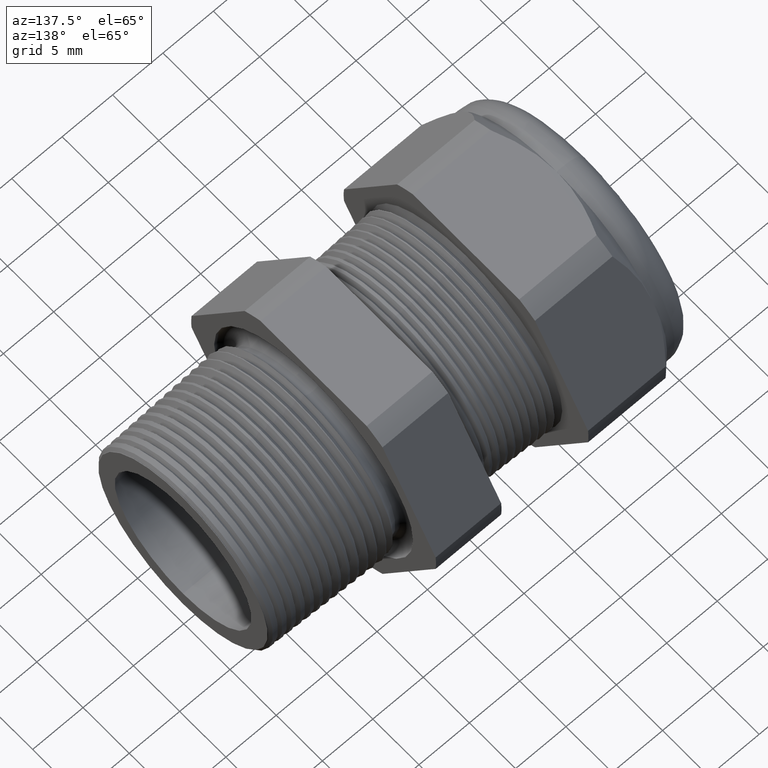
[diagram: clean part render]
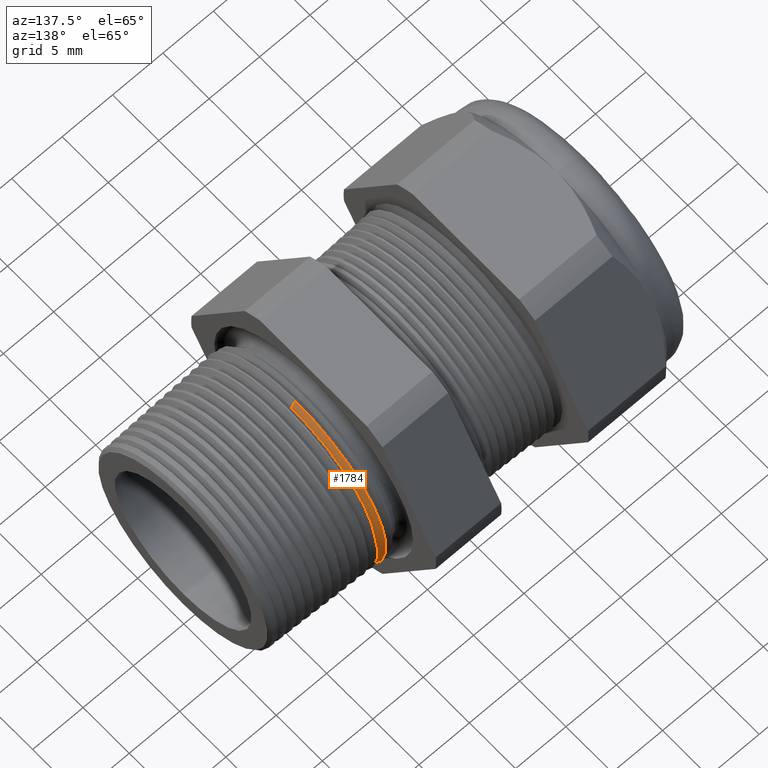
[diagram: same view with one face highlighted and labeled with its STEP entity id]
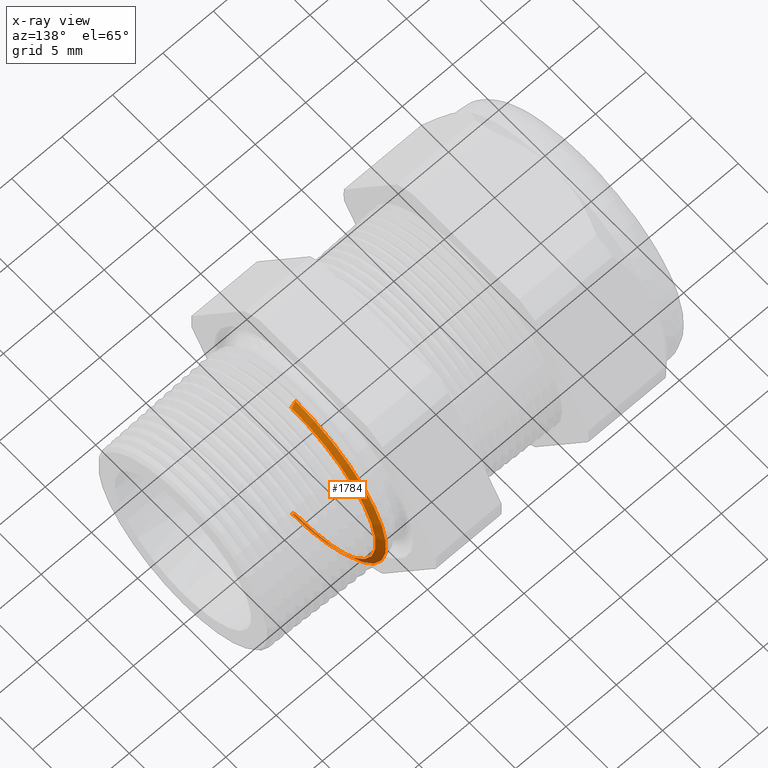
[diagram: x-ray of the same camera — body ghosted, the highlighted face saturated]
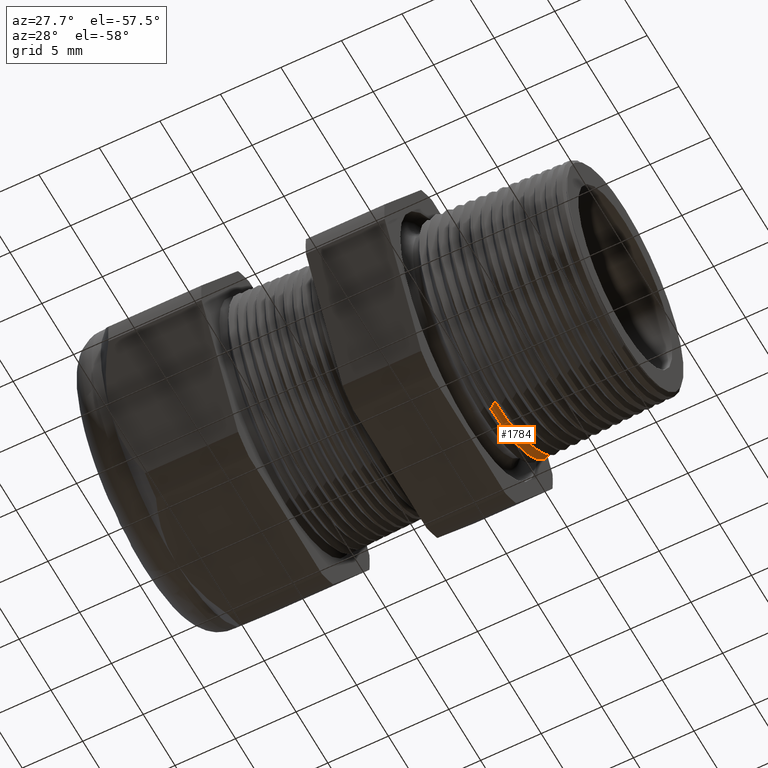
[diagram: same view with one face highlighted and labeled with its STEP entity id]
A machine part, auxiliary view. The second image highlights one B-rep face of the part: STEP entity #1784.
The next image is the same camera in x-ray: the body ghosted, the highlighted face saturated — about 7% of this face is hidden behind the body in this view.
A second angle (auxiliary view) of the same face is appended — the face is thin or edge-on in the first view.
In plain terms, the highlighted conical surface has half-angle 62 deg.
Its self-contained STEP definition (entity closure, byte-faithful):
#1671 = ORIENTED_EDGE ( 'NONE', *, *, #1714, .F. ) ;
#1714 = EDGE_CURVE ( 'NONE', #1716, #1715, #4891, .T. ) ;
#1715 = VERTEX_POINT ( 'NONE', #4887 ) ;
#1716 = VERTEX_POINT ( 'NONE', #4886 ) ;
#1772 = ORIENTED_EDGE ( 'NONE', *, *, #1773, .F. ) ;
#1773 = EDGE_CURVE ( 'NONE', #1715, #1780, #5017, .T. ) ;
#1775 = ORIENTED_EDGE ( 'NONE', *, *, #1779, .T. ) ;
#1776 = VERTEX_POINT ( 'NONE', #5009 ) ;
#1777 = ORIENTED_EDGE ( 'NONE', *, *, #1778, .T. ) ;
#1778 = EDGE_CURVE ( 'NONE', #1776, #1780, #5008, .T. ) ;
#1779 = EDGE_CURVE ( 'NONE', #1716, #1776, #5003, .T. ) ;
#1780 = VERTEX_POINT ( 'NONE', #4999 ) ;
#1783 = EDGE_LOOP ( 'NONE', ( #1671, #1775, #1777, #1772 ) ) ;
#1784 = ADVANCED_FACE ( 'NONE', ( #5049 ), #5048, .T. ) ;
#4886 = CARTESIAN_POINT ( 'NONE',  ( -0.2237370280109210500, 4.563873687570370700E-017, -0.3586208171594783600 ) ) ;
#4887 = CARTESIAN_POINT ( 'NONE',  ( -0.2237370280109210500, 0.0000000000000000000, 0.3586208171594783600 ) ) ;
#4888 = DIRECTION ( 'NONE',  ( 0.0000000000000000000, 0.0000000000000000000, -1.000000000000000000 ) ) ;
#4889 = DIRECTION ( 'NONE',  ( 1.000000000000000000, 0.0000000000000000000, 0.0000000000000000000 ) ) ;
#4890 = AXIS2_PLACEMENT_3D ( 'NONE', #4895, #4889, #4888 ) ;
#4891 = CIRCLE ( 'NONE', #4890, 0.3586208171594783600 ) ;
#4895 = CARTESIAN_POINT ( 'NONE',  ( -0.2237370280109210500, 0.0000000000000000000, 0.0000000000000000000 ) ) ;
#4999 = CARTESIAN_POINT ( 'NONE',  ( -0.2386756710796202600, 0.0000000000000000000, 0.3867163185351426000 ) ) ;
#5000 = DIRECTION ( 'NONE',  ( -0.4694715627859021900, 1.081298943409537900E-016, -0.8829475928589208800 ) ) ;
#5001 = VECTOR ( 'NONE', #5000, 39.37007874015748100 ) ;
#5002 = CARTESIAN_POINT ( 'NONE',  ( -0.2399999999999999600, 4.766411300050807300E-017, -0.3892070189845242000 ) ) ;
#5003 = LINE ( 'NONE', #5002, #5001 ) ;
#5004 = DIRECTION ( 'NONE',  ( 0.0000000000000000000, 0.0000000000000000000, 1.000000000000000000 ) ) ;
#5005 = DIRECTION ( 'NONE',  ( 1.000000000000000000, 0.0000000000000000000, 0.0000000000000000000 ) ) ;
#5006 = CARTESIAN_POINT ( 'NONE',  ( -0.2386756710796202600, 0.0000000000000000000, 0.0000000000000000000 ) ) ;
#5007 = AXIS2_PLACEMENT_3D ( 'NONE', #5006, #5005, #5004 ) ;
#5008 = CIRCLE ( 'NONE', #5007, 0.3867163185351426000 ) ;
#5009 = CARTESIAN_POINT ( 'NONE',  ( -0.2386756710796202600, 4.736433288408214800E-017, -0.3867163185351426000 ) ) ;
#5010 = DIRECTION ( 'NONE',  ( -0.4694715627859021900, 0.0000000000000000000, 0.8829475928589208800 ) ) ;
#5011 = VECTOR ( 'NONE', #5010, 39.37007874015748100 ) ;
#5012 = CARTESIAN_POINT ( 'NONE',  ( -0.2399999999999999600, 0.0000000000000000000, 0.3892070189845242000 ) ) ;
#5017 = LINE ( 'NONE', #5012, #5011 ) ;
#5043 = DIRECTION ( 'NONE',  ( 0.0000000000000000000, 0.0000000000000000000, 1.000000000000000000 ) ) ;
#5044 = DIRECTION ( 'NONE',  ( -1.000000000000000000, 0.0000000000000000000, 0.0000000000000000000 ) ) ;
#5045 = CARTESIAN_POINT ( 'NONE',  ( -0.2399999999999999600, 0.0000000000000000000, 0.0000000000000000000 ) ) ;
#5046 = AXIS2_PLACEMENT_3D ( 'NONE', #5045, #5044, #5043 ) ;
#5048 = CONICAL_SURFACE ( 'NONE', #5046, 0.3892070189845242000, 1.082104136236471400 ) ;
#5049 = FACE_OUTER_BOUND ( 'NONE', #1783, .T. ) ;